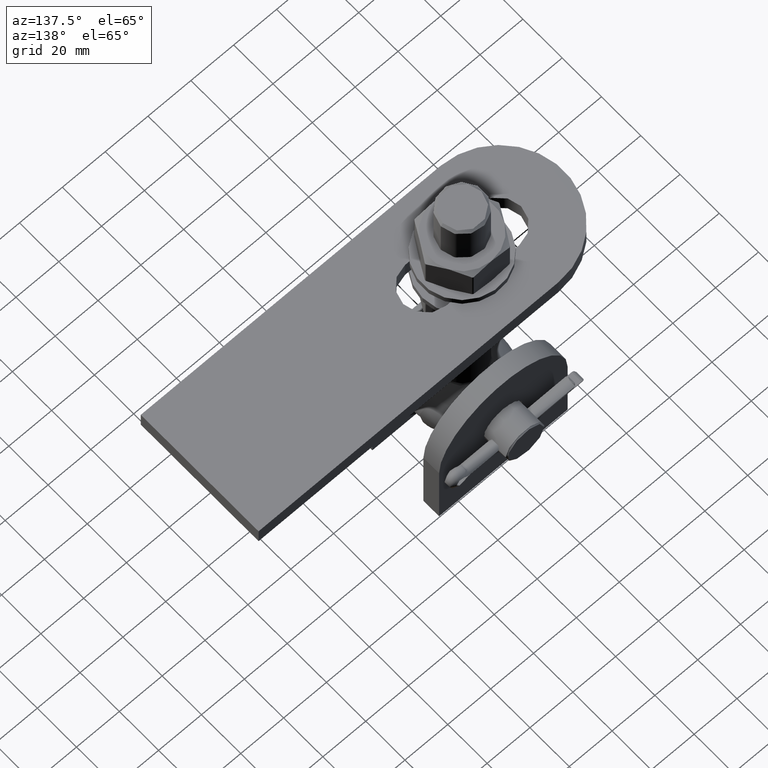
[diagram: clean part render]
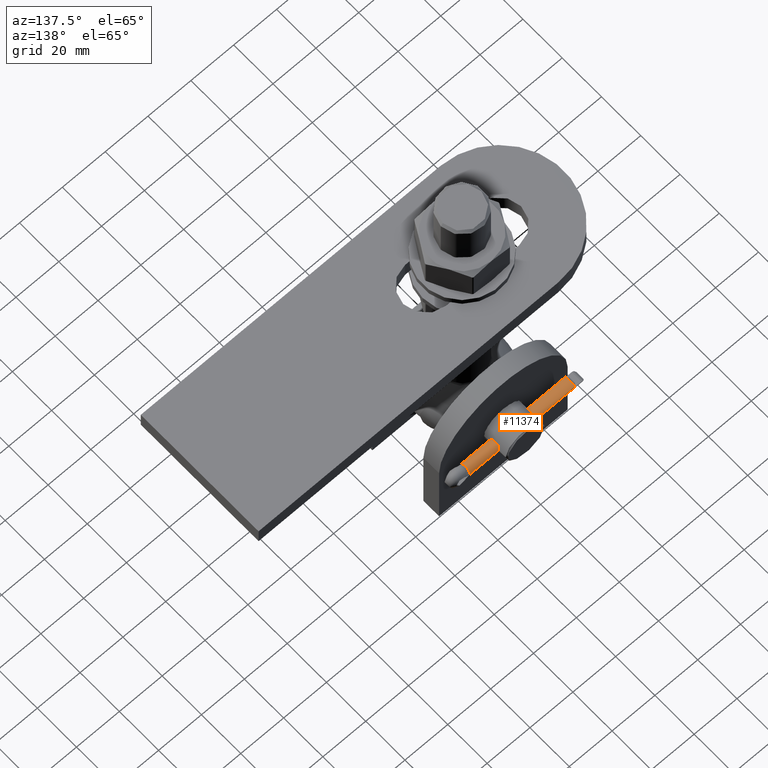
[diagram: same view with one face highlighted and labeled with its STEP entity id]
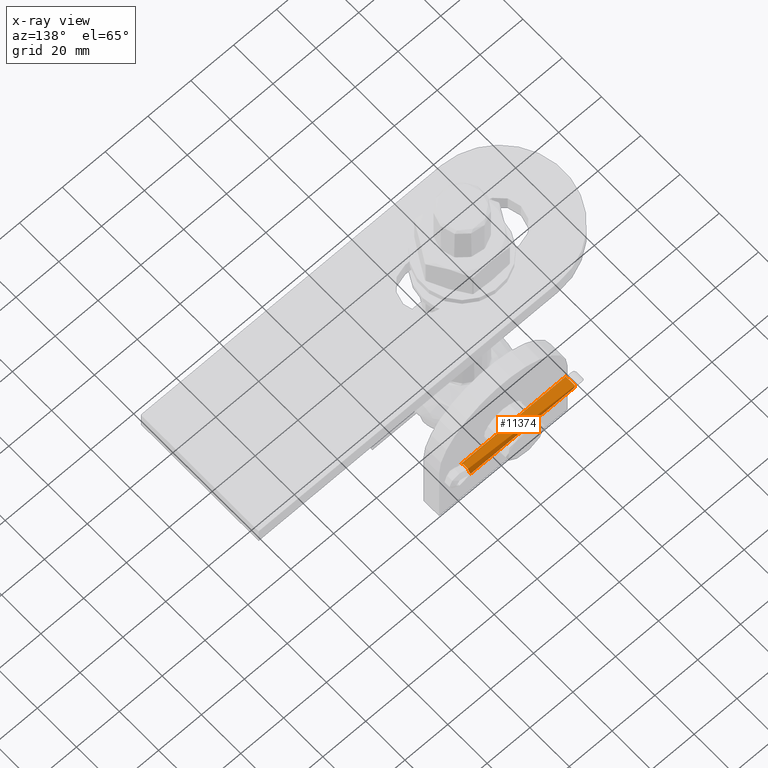
[diagram: x-ray of the same camera — body ghosted, the highlighted face saturated]
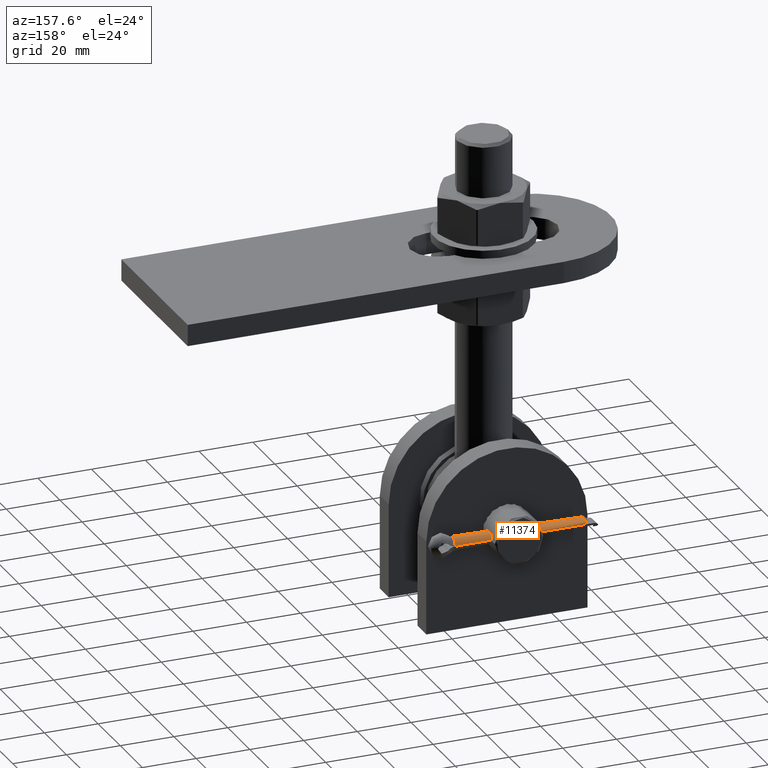
[diagram: same view with one face highlighted and labeled with its STEP entity id]
A machine part, auxiliary view. The second image highlights one B-rep face of the part: STEP entity #11374.
The next image is the same camera in x-ray: the body ghosted, the highlighted face saturated — about 0% of this face is hidden behind the body in this view.
A second angle (auxiliary view) of the same face is appended — the face is thin or edge-on in the first view.
In plain terms, the highlighted cylindrical surface (edge-blend (fillet) strip) has radius 2.5 mm, axis along (-1, 0, -0).
Its self-contained STEP definition (entity closure, byte-faithful):
#186 = ORIENTED_EDGE ( 'NONE', *, *, #18979, .T. ) ;
#363 = EDGE_CURVE ( 'NONE', #11543, #25202, #14325, .T. ) ;
#563 = CARTESIAN_POINT ( 'NONE',  ( 2.499979999919999418, -2.490000000000000213, -49.48984831638268389 ) ) ;
#1177 = CARTESIAN_POINT ( 'NONE',  ( 2.431110771635006884, -1.897670651406387243, -0.6526706514063909115 ) ) ;
#2316 = ORIENTED_EDGE ( 'NONE', *, *, #30274, .T. ) ;
#2397 = CARTESIAN_POINT ( 'NONE',  ( 0.000000000000000000, -2.500000000000000000, -49.48984831638268389 ) ) ;
#2857 = CARTESIAN_POINT ( 'NONE',  ( -2.481583304665959666, -2.197106781186548563, -0.9521067811865532304 ) ) ;
#3011 = LINE ( 'NONE', #9059, #4164 ) ;
#3043 = B_SPLINE_CURVE_WITH_KNOTS ( 'NONE', 3,
 ( #10018, #24690, #5725, #7878, #17670, #2857 ),
 .UNSPECIFIED., .F., .F.,
 ( 4, 2, 4 ),
 ( 0.000000000000000000, 0.0003906063436695470241, 0.0007812126873390940482 ),
 .UNSPECIFIED. ) ;
#3192 = FACE_OUTER_BOUND ( 'NONE', #5110, .T. ) ;
#3356 = ORIENTED_EDGE ( 'NONE', *, *, #26437, .T. ) ;
#3582 = LINE ( 'NONE', #563, #9294 ) ;
#3596 = DIRECTION ( 'NONE',  ( 0.000000000000000000, 0.000000000000000000, 1.000000000000000000 ) ) ;
#3785 = VERTEX_POINT ( 'NONE', #19383 ) ;
#4164 = VECTOR ( 'NONE', #14008, 1000.000000000000000 ) ;
#4772 = CARTESIAN_POINT ( 'NONE',  ( 2.385674596319957264, -1.752633476483185460, -0.5076334764831886837 ) ) ;
#5110 = EDGE_LOOP ( 'NONE', ( #2316, #3356, #25911, #16062, #27822, #16627, #16691, #186 ) ) ;
#5328 = CARTESIAN_POINT ( 'NONE',  ( -2.385674596319956375, -1.752633476483184127, -0.5076334764831871293 ) ) ;
#5614 = CARTESIAN_POINT ( 'NONE',  ( 2.499979999919999418, -2.490000000000000213, -49.48984831638268389 ) ) ;
#5725 = CARTESIAN_POINT ( 'NONE',  ( -2.500244264023082419, -2.464002463455371661, -1.397520589763428855 ) ) ;
#5773 = CARTESIAN_POINT ( 'NONE',  ( 2.500243165487229469, -2.463883851661200719, -1.397101334867592692 ) ) ;
#7063 = CARTESIAN_POINT ( 'NONE',  ( -2.499979999919999418, -2.490000000000000213, -49.48984831638268389 ) ) ;
#7878 = CARTESIAN_POINT ( 'NONE',  ( -2.496786850888323084, -2.363718586561571300, -1.155447900356257218 ) ) ;
#9059 = CARTESIAN_POINT ( 'NONE',  ( -2.499979999919999418, -2.490000000000000213, -49.48984831638268389 ) ) ;
#9294 = VECTOR ( 'NONE', #12963, 1000.000000000000000 ) ;
#9580 = VERTEX_POINT ( 'NONE', #28483 ) ;
#10018 = CARTESIAN_POINT ( 'NONE',  ( -2.499979999919999418, -2.490000000000000213, -1.659213562373099027 ) ) ;
#11374 = ADVANCED_FACE ( 'NONE', ( #3192 ), #18844, .T. ) ;
#11543 = VERTEX_POINT ( 'NONE', #5614 ) ;
#11854 = EDGE_CURVE ( 'NONE', #11543, #9580, #3582, .T. ) ;
#12306 = VERTEX_POINT ( 'NONE', #28228 ) ;
#12963 = DIRECTION ( 'NONE',  ( -0.000000000000000000, -0.000000000000000000, 1.000000000000000000 ) ) ;
#13045 = CARTESIAN_POINT ( 'NONE',  ( 2.492941570271943075, -2.290164269921980633, -1.045164269921984523 ) ) ;
#13309 = CARTESIAN_POINT ( 'NONE',  ( 0.000000000000000000, -2.500000000000000000, -49.48984831638268389 ) ) ;
#13830 = EDGE_CURVE ( 'NONE', #18407, #12306, #22266, .T. ) ;
#14008 = DIRECTION ( 'NONE',  ( -0.000000000000000000, -0.000000000000000000, 1.000000000000000000 ) ) ;
#14325 = CIRCLE ( 'NONE', #30039, 2.500000000000000000 ) ;
#15816 = CARTESIAN_POINT ( 'NONE',  ( 2.385674596319957264, -1.752633476483185460, -0.5076334764831886837 ) ) ;
#16062 = ORIENTED_EDGE ( 'NONE', *, *, #363, .T. ) ;
#16347 = CARTESIAN_POINT ( 'NONE',  ( 2.481583304665959666, -2.197106781186548119, -0.9521067811865527863 ) ) ;
#16530 = B_SPLINE_CURVE_WITH_KNOTS ( 'NONE', 3,
 ( #25266, #13045, #30127, #5773, #18140, #17919 ),
 .UNSPECIFIED., .F., .F.,
 ( 4, 2, 4 ),
 ( 6.133173666733496745E-19, 0.0003905280839846525780, 0.0007810561679693046140 ),
 .UNSPECIFIED. ) ;
#16627 = ORIENTED_EDGE ( 'NONE', *, *, #25025, .T. ) ;
#16691 = ORIENTED_EDGE ( 'NONE', *, *, #13830, .T. ) ;
#17670 = CARTESIAN_POINT ( 'NONE',  ( -2.492942233587890133, -2.290169704423416164, -1.045169704423370538 ) ) ;
#17919 = CARTESIAN_POINT ( 'NONE',  ( 2.499979999919999418, -2.490000000000000213, -1.659213562373099027 ) ) ;
#18140 = CARTESIAN_POINT ( 'NONE',  ( 2.499979999919999418, -2.490000000000000657, -1.527162524337540850 ) ) ;
#18341 = VERTEX_POINT ( 'NONE', #23564 ) ;
#18407 = VERTEX_POINT ( 'NONE', #25801 ) ;
#18435 = EDGE_CURVE ( 'NONE', #25202, #3785, #3011, .T. ) ;
#18844 = CYLINDRICAL_SURFACE ( 'NONE', #28337, 2.500000000000000000 ) ;
#18979 = EDGE_CURVE ( 'NONE', #12306, #28888, #24183, .T. ) ;
#19383 = CARTESIAN_POINT ( 'NONE',  ( -2.499979999919999418, -2.490000000000000213, -1.659213562373099027 ) ) ;
#19819 = CARTESIAN_POINT ( 'NONE',  ( -1.493012529392596432, 1.096840174204275931, -2.217317666895635586 ) ) ;
#20454 = CARTESIAN_POINT ( 'NONE',  ( -2.463168900275745088, -2.046238832808116914, -0.8012388328081211375 ) ) ;
#22266 =( BOUNDED_CURVE ( )  B_SPLINE_CURVE ( 3, ( #25657, #20454, #30399, #25343 ),
 .UNSPECIFIED., .F., .F. ) 
 B_SPLINE_CURVE_WITH_KNOTS ( ( 4, 4 ),
 ( 4.833844656261454986, 5.015977572461148171 ),
 .UNSPECIFIED. ) 
 CURVE ( )  GEOMETRIC_REPRESENTATION_ITEM ( )  RATIONAL_B_SPLINE_CURVE ( ( 1.000000000000000000, 0.9972375433056852589, 0.9972375433056852589, 1.000000000000000000 ) ) 
 REPRESENTATION_ITEM ( '' )  );
#22894 = DIRECTION ( 'NONE',  ( 1.000000000000000000, 0.000000000000000000, 0.000000000000000000 ) ) ;
#23564 = CARTESIAN_POINT ( 'NONE',  ( 2.481583304665959666, -2.197106781186548119, -0.9521067811865527863 ) ) ;
#24183 =( BOUNDED_CURVE ( )  B_SPLINE_CURVE ( 3, ( #5328, #19819, #26853, #29678 ),
 .UNSPECIFIED., .F., .T. ) 
 B_SPLINE_CURVE_WITH_KNOTS ( ( 4, 4 ),
 ( 1.874384918871357053, 4.408800388308229401 ),
 .UNSPECIFIED. ) 
 CURVE ( )  GEOMETRIC_REPRESENTATION_ITEM ( )  RATIONAL_B_SPLINE_CURVE ( ( 1.000000000000000000, 0.5326310729378184172, 0.5326310729378184172, 1.000000000000000000 ) ) 
 REPRESENTATION_ITEM ( '' )  );
#24690 = CARTESIAN_POINT ( 'NONE',  ( -2.499979999919999862, -2.490000000000000657, -1.527142508146417388 ) ) ;
#25025 = EDGE_CURVE ( 'NONE', #3785, #18407, #3043, .T. ) ;
#25202 = VERTEX_POINT ( 'NONE', #7063 ) ;
#25266 = CARTESIAN_POINT ( 'NONE',  ( 2.481583304665959666, -2.197106781186548119, -0.9521067811865527863 ) ) ;
#25343 = CARTESIAN_POINT ( 'NONE',  ( -2.385674596319956375, -1.752633476483184127, -0.5076334764831871293 ) ) ;
#25657 = CARTESIAN_POINT ( 'NONE',  ( -2.481583304665959666, -2.197106781186548563, -0.9521067811865532304 ) ) ;
#25801 = CARTESIAN_POINT ( 'NONE',  ( -2.481583304665959666, -2.197106781186548563, -0.9521067811865532304 ) ) ;
#25911 = ORIENTED_EDGE ( 'NONE', *, *, #11854, .F. ) ;
#26437 = EDGE_CURVE ( 'NONE', #18341, #9580, #16530, .T. ) ;
#26853 = CARTESIAN_POINT ( 'NONE',  ( 1.493012529392596432, 1.096840174204275931, -2.217317666895635586 ) ) ;
#27004 = DIRECTION ( 'NONE',  ( -0.000000000000000000, -0.000000000000000000, 1.000000000000000000 ) ) ;
#27474 =( BOUNDED_CURVE ( )  B_SPLINE_CURVE ( 3, ( #15816, #1177, #30868, #16347 ),
 .UNSPECIFIED., .F., .T. ) 
 B_SPLINE_CURVE_WITH_KNOTS ( ( 4, 4 ),
 ( 1.267207734718438283, 1.449340650918131468 ),
 .UNSPECIFIED. ) 
 CURVE ( )  GEOMETRIC_REPRESENTATION_ITEM ( )  RATIONAL_B_SPLINE_CURVE ( ( 1.000000000000000000, 0.9972375433056852589, 0.9972375433056852589, 1.000000000000000000 ) ) 
 REPRESENTATION_ITEM ( '' )  );
#27822 = ORIENTED_EDGE ( 'NONE', *, *, #18435, .T. ) ;
#28228 = CARTESIAN_POINT ( 'NONE',  ( -2.385674596319956375, -1.752633476483184127, -0.5076334764831871293 ) ) ;
#28337 = AXIS2_PLACEMENT_3D ( 'NONE', #2397, #27004, #29423 ) ;
#28483 = CARTESIAN_POINT ( 'NONE',  ( 2.499979999919999418, -2.490000000000000213, -1.659213562373099027 ) ) ;
#28888 = VERTEX_POINT ( 'NONE', #4772 ) ;
#29423 = DIRECTION ( 'NONE',  ( 1.000000000000000000, 0.000000000000000000, 0.000000000000000000 ) ) ;
#29678 = CARTESIAN_POINT ( 'NONE',  ( 2.385674596319957264, -1.752633476483185460, -0.5076334764831886837 ) ) ;
#30039 = AXIS2_PLACEMENT_3D ( 'NONE', #13309, #3596, #22894 ) ;
#30127 = CARTESIAN_POINT ( 'NONE',  ( 2.496777668008723250, -2.363539239085528543, -1.155148314501129425 ) ) ;
#30274 = EDGE_CURVE ( 'NONE', #28888, #18341, #27474, .T. ) ;
#30399 = CARTESIAN_POINT ( 'NONE',  ( -2.431110771635006884, -1.897670651406387243, -0.6526706514063909115 ) ) ;
#30868 = CARTESIAN_POINT ( 'NONE',  ( 2.463168900275745088, -2.046238832808116470, -0.8012388328081209155 ) ) ;